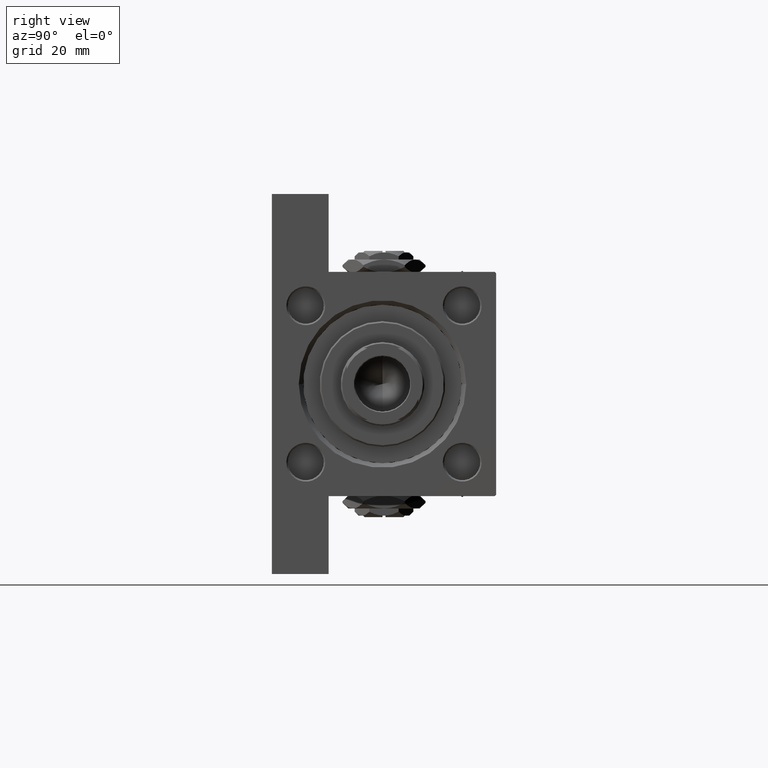
[diagram: clean part render]
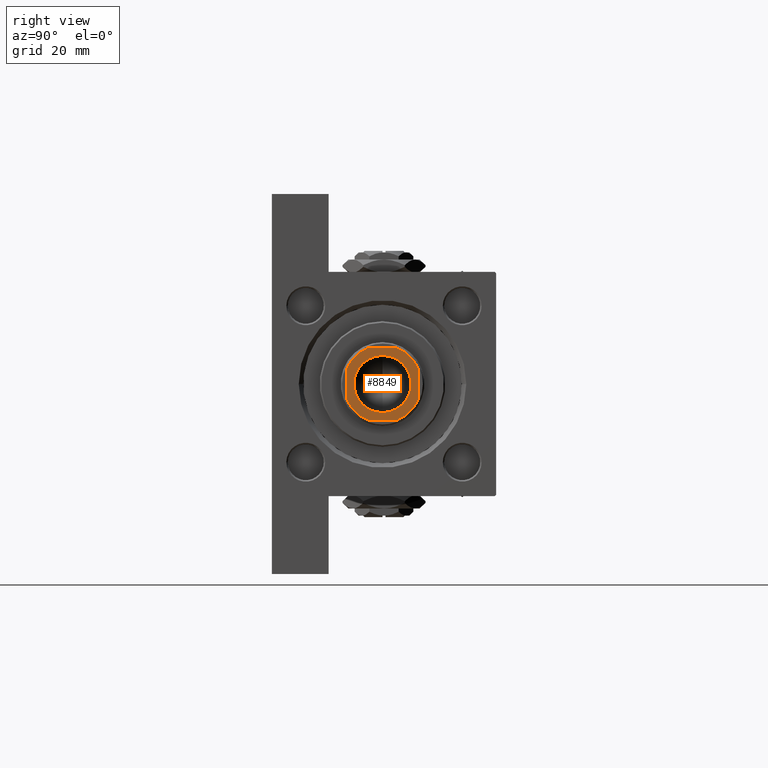
[diagram: same view with one face highlighted and labeled with its STEP entity id]
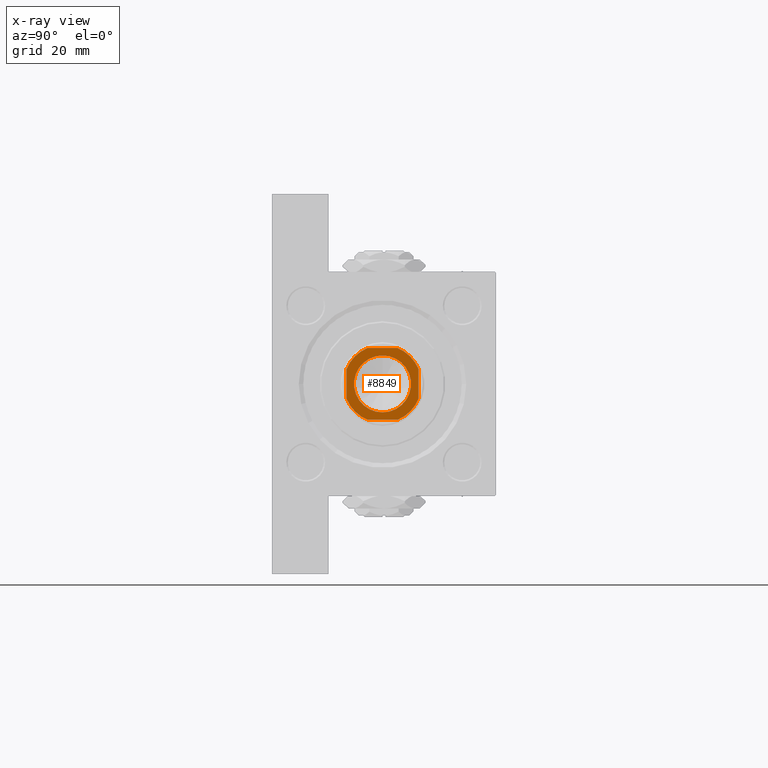
[diagram: x-ray of the same camera — body ghosted, the highlighted face saturated]
A machine part, right view. The second image highlights one B-rep face of the part: STEP entity #8849.
The next image is the same camera in x-ray: the body ghosted, the highlighted face saturated — about 0% of this face is hidden behind the body in this view.
In plain terms, the highlighted planar face has unit normal (1, 0, 0).
Its self-contained STEP definition (entity closure, byte-faithful):
#785 = CARTESIAN_POINT ( 'NONE',  ( 12.00000000000000178, -4.999999999999976907, 142.0000000000000284 ) ) ;
#787 = EDGE_CURVE ( 'NONE', #21135, #30689, #28531, .T. ) ;
#1697 = ORIENTED_EDGE ( 'NONE', *, *, #13502, .T. ) ;
#2362 = CARTESIAN_POINT ( 'NONE',  ( 0.000000000000000000, 0.000000000000000000, 142.0000000000000284 ) ) ;
#2983 = AXIS2_PLACEMENT_3D ( 'NONE', #48944, #17919, #33182 ) ;
#5153 = FACE_BOUND ( 'NONE', #27069, .T. ) ;
#5470 = CARTESIAN_POINT ( 'NONE',  ( -4.999999999999944933, 11.99999999999999645, 142.0000000000000284 ) ) ;
#5643 = ORIENTED_EDGE ( 'NONE', *, *, #787, .T. ) ;
#6166 = CIRCLE ( 'NONE', #46912, 12.99999999999999112 ) ;
#6318 = CARTESIAN_POINT ( 'NONE',  ( -12.00000000000000000, -4.999999999999980460, 142.0000000000000284 ) ) ;
#7603 = EDGE_CURVE ( 'NONE', #46930, #33726, #11599, .T. ) ;
#8104 = CARTESIAN_POINT ( 'NONE',  ( 0.000000000000000000, 0.000000000000000000, 142.0000000000000284 ) ) ;
#8392 = EDGE_CURVE ( 'NONE', #30689, #46930, #6166, .T. ) ;
#8600 = EDGE_CURVE ( 'NONE', #33726, #28704, #17369, .T. ) ;
#8849 = ADVANCED_FACE ( 'NONE', ( #5153, #35401 ), #16398, .T. ) ;
#9284 = VERTEX_POINT ( 'NONE', #6318 ) ;
#9424 = CIRCLE ( 'NONE', #38918, 9.550000000000002487 ) ;
#10745 = EDGE_CURVE ( 'NONE', #15453, #38462, #11518, .T. ) ;
#11341 = VECTOR ( 'NONE', #27786, 1000.000000000000000 ) ;
#11360 = DIRECTION ( 'NONE',  ( 1.000000000000000000, 0.000000000000000000, 0.000000000000000000 ) ) ;
#11518 = LINE ( 'NONE', #19471, #15868 ) ;
#11599 = LINE ( 'NONE', #15093, #32503 ) ;
#11762 = CARTESIAN_POINT ( 'NONE',  ( -12.00000000000000000, 11.99999999999999645, 142.0000000000000284 ) ) ;
#12318 = ORIENTED_EDGE ( 'NONE', *, *, #7603, .T. ) ;
#13502 = EDGE_CURVE ( 'NONE', #32007, #41578, #44677, .T. ) ;
#13507 = EDGE_LOOP ( 'NONE', ( #5643, #48772, #12318, #20801, #16014, #20433, #29813, #37464 ) ) ;
#14136 = EDGE_CURVE ( 'NONE', #28704, #9284, #19213, .T. ) ;
#14372 = AXIS2_PLACEMENT_3D ( 'NONE', #29775, #18534, #19948 ) ;
#14406 = CARTESIAN_POINT ( 'NONE',  ( 9.550000000000002487, 0.000000000000000000, 142.0000000000000284 ) ) ;
#14427 = CARTESIAN_POINT ( 'NONE',  ( 4.999999999999984013, 11.99999999999999645, 142.0000000000000284 ) ) ;
#15093 = CARTESIAN_POINT ( 'NONE',  ( -12.00000000000000000, 11.99999999999999645, 142.0000000000000284 ) ) ;
#15453 = VERTEX_POINT ( 'NONE', #47316 ) ;
#15868 = VECTOR ( 'NONE', #37752, 1000.000000000000000 ) ;
#16014 = ORIENTED_EDGE ( 'NONE', *, *, #14136, .T. ) ;
#16398 = PLANE ( 'NONE',  #31705 ) ;
#16757 = VECTOR ( 'NONE', #30462, 1000.000000000000000 ) ;
#17369 = CIRCLE ( 'NONE', #2983, 12.99999999999997513 ) ;
#17919 = DIRECTION ( 'NONE',  ( -0.000000000000000000, 0.000000000000000000, 1.000000000000000000 ) ) ;
#17984 = EDGE_CURVE ( 'NONE', #9284, #15453, #41532, .T. ) ;
#17990 = CIRCLE ( 'NONE', #41969, 12.99999999999999289 ) ;
#18534 = DIRECTION ( 'NONE',  ( -0.000000000000000000, 0.000000000000000000, 1.000000000000000000 ) ) ;
#18921 = CARTESIAN_POINT ( 'NONE',  ( -12.00000000000000000, 4.999999999999936051, 142.0000000000000284 ) ) ;
#19071 = CARTESIAN_POINT ( 'NONE',  ( 0.000000000000000000, 0.000000000000000000, 142.0000000000000284 ) ) ;
#19213 = LINE ( 'NONE', #11762, #16757 ) ;
#19471 = CARTESIAN_POINT ( 'NONE',  ( -11.99999999999999822, -12.00000000000000355, 142.0000000000000284 ) ) ;
#19948 = DIRECTION ( 'NONE',  ( 1.000000000000000000, 0.000000000000000000, 0.000000000000000000 ) ) ;
#20379 = DIRECTION ( 'NONE',  ( 1.000000000000000000, 0.000000000000000000, 0.000000000000000000 ) ) ;
#20433 = ORIENTED_EDGE ( 'NONE', *, *, #17984, .T. ) ;
#20801 = ORIENTED_EDGE ( 'NONE', *, *, #8600, .T. ) ;
#21035 = CARTESIAN_POINT ( 'NONE',  ( 11.99999999999999645, 11.99999999999999645, 142.0000000000000284 ) ) ;
#21135 = VERTEX_POINT ( 'NONE', #785 ) ;
#23316 = DIRECTION ( 'NONE',  ( -0.000000000000000000, 0.000000000000000000, 1.000000000000000000 ) ) ;
#24090 = CARTESIAN_POINT ( 'NONE',  ( 4.999999999999971578, -12.00000000000000355, 142.0000000000000284 ) ) ;
#24287 = CARTESIAN_POINT ( 'NONE',  ( -9.550000000000002487, 1.169537693185722558E-15, 142.0000000000000284 ) ) ;
#24604 = DIRECTION ( 'NONE',  ( -0.000000000000000000, 0.000000000000000000, 1.000000000000000000 ) ) ;
#26695 = DIRECTION ( 'NONE',  ( 1.000000000000000000, 0.000000000000000000, 0.000000000000000000 ) ) ;
#26792 = DIRECTION ( 'NONE',  ( -1.000000000000000000, -0.000000000000000000, -0.000000000000000000 ) ) ;
#26801 = DIRECTION ( 'NONE',  ( 0.000000000000000000, -0.000000000000000000, -1.000000000000000000 ) ) ;
#27069 = EDGE_LOOP ( 'NONE', ( #1697, #36105 ) ) ;
#27080 = AXIS2_PLACEMENT_3D ( 'NONE', #30451, #42470, #26695 ) ;
#27786 = DIRECTION ( 'NONE',  ( -2.891205793294678326E-16, 1.000000000000000000, -0.000000000000000000 ) ) ;
#28531 = LINE ( 'NONE', #21035, #11341 ) ;
#28704 = VERTEX_POINT ( 'NONE', #18921 ) ;
#29775 = CARTESIAN_POINT ( 'NONE',  ( 0.000000000000000000, 0.000000000000000000, 142.0000000000000284 ) ) ;
#29813 = ORIENTED_EDGE ( 'NONE', *, *, #10745, .T. ) ;
#30451 = CARTESIAN_POINT ( 'NONE',  ( 0.000000000000000000, 0.000000000000000000, 142.0000000000000284 ) ) ;
#30462 = DIRECTION ( 'NONE',  ( 7.228014483236695816E-17, -1.000000000000000000, 0.000000000000000000 ) ) ;
#30689 = VERTEX_POINT ( 'NONE', #43136 ) ;
#31705 = AXIS2_PLACEMENT_3D ( 'NONE', #47172, #24604, #20379 ) ;
#32007 = VERTEX_POINT ( 'NONE', #14406 ) ;
#32503 = VECTOR ( 'NONE', #26792, 1000.000000000000000 ) ;
#33182 = DIRECTION ( 'NONE',  ( 1.000000000000000000, 0.000000000000000000, 0.000000000000000000 ) ) ;
#33726 = VERTEX_POINT ( 'NONE', #5470 ) ;
#35401 = FACE_OUTER_BOUND ( 'NONE', #13507, .T. ) ;
#36105 = ORIENTED_EDGE ( 'NONE', *, *, #46528, .T. ) ;
#37464 = ORIENTED_EDGE ( 'NONE', *, *, #41557, .T. ) ;
#37752 = DIRECTION ( 'NONE',  ( 1.000000000000000000, 0.000000000000000000, 0.000000000000000000 ) ) ;
#38462 = VERTEX_POINT ( 'NONE', #24090 ) ;
#38585 = DIRECTION ( 'NONE',  ( 1.000000000000000000, 0.000000000000000000, 0.000000000000000000 ) ) ;
#38918 = AXIS2_PLACEMENT_3D ( 'NONE', #19071, #26801, #11360 ) ;
#39878 = DIRECTION ( 'NONE',  ( 1.000000000000000000, 0.000000000000000000, 0.000000000000000000 ) ) ;
#41532 = CIRCLE ( 'NONE', #14372, 12.99999999999999289 ) ;
#41557 = EDGE_CURVE ( 'NONE', #38462, #21135, #17990, .T. ) ;
#41578 = VERTEX_POINT ( 'NONE', #24287 ) ;
#41969 = AXIS2_PLACEMENT_3D ( 'NONE', #8104, #23316, #38585 ) ;
#42470 = DIRECTION ( 'NONE',  ( 0.000000000000000000, -0.000000000000000000, -1.000000000000000000 ) ) ;
#43136 = CARTESIAN_POINT ( 'NONE',  ( 11.99999999999999822, 4.999999999999980460, 142.0000000000000284 ) ) ;
#44677 = CIRCLE ( 'NONE', #27080, 9.550000000000002487 ) ;
#46528 = EDGE_CURVE ( 'NONE', #41578, #32007, #9424, .T. ) ;
#46912 = AXIS2_PLACEMENT_3D ( 'NONE', #2362, #47392, #39878 ) ;
#46930 = VERTEX_POINT ( 'NONE', #14427 ) ;
#47172 = CARTESIAN_POINT ( 'NONE',  ( 0.000000000000000000, 0.000000000000000000, 142.0000000000000284 ) ) ;
#47316 = CARTESIAN_POINT ( 'NONE',  ( -4.999999999999971578, -12.00000000000000355, 142.0000000000000284 ) ) ;
#47392 = DIRECTION ( 'NONE',  ( -0.000000000000000000, 0.000000000000000000, 1.000000000000000000 ) ) ;
#48772 = ORIENTED_EDGE ( 'NONE', *, *, #8392, .T. ) ;
#48944 = CARTESIAN_POINT ( 'NONE',  ( 0.000000000000000000, 0.000000000000000000, 142.0000000000000284 ) ) ;